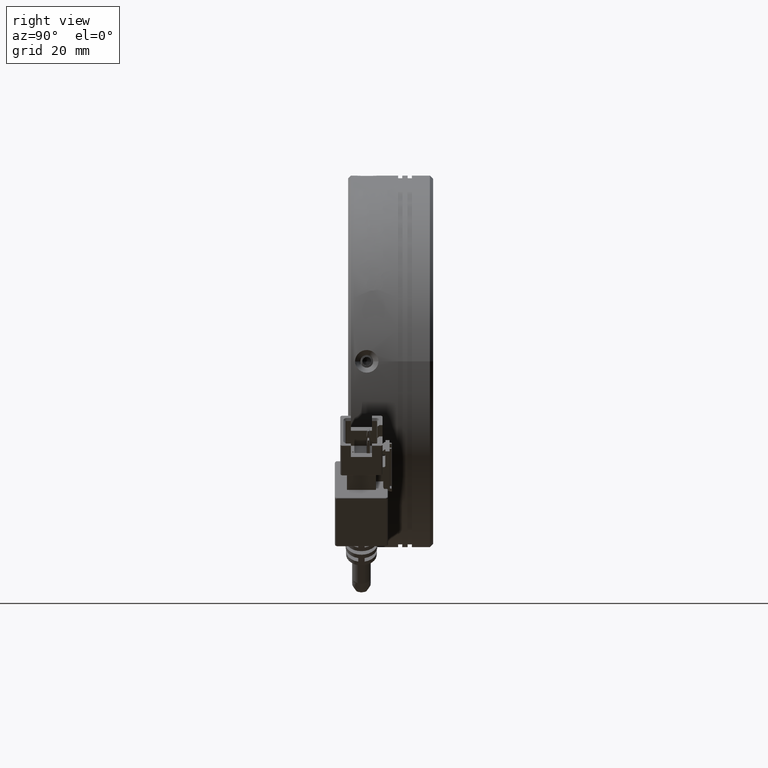
[diagram: clean part render]
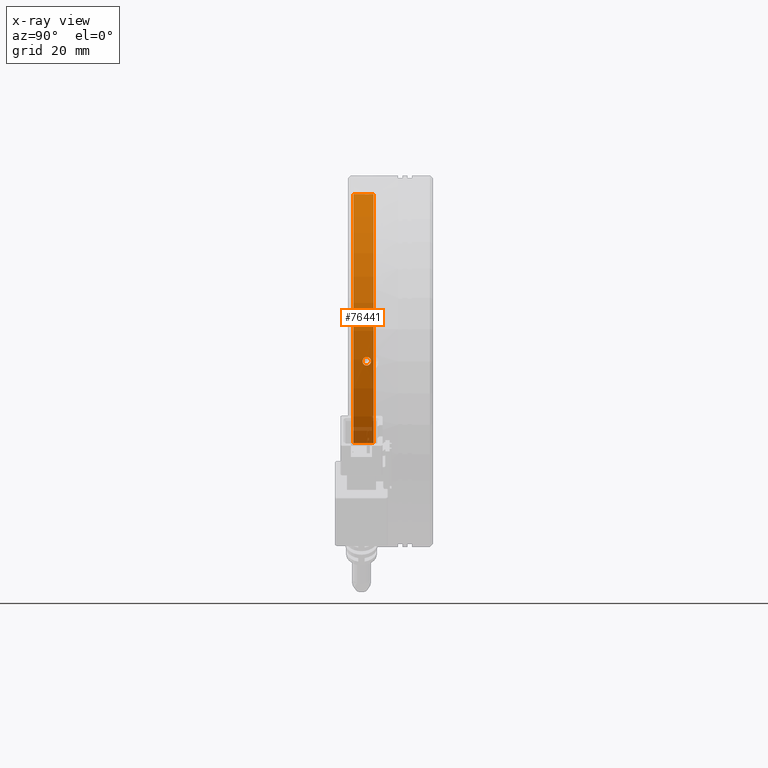
[diagram: x-ray — body ghosted, one internal face saturated and labeled with its STEP entity id]
A machine part, right view, then the same camera in x-ray: the body is ghosted and one INTERNAL B-rep face — a face not visible from any outside direction — is saturated and labeled: STEP entity #76441.
In plain terms, the highlighted cylindrical surface (partial cylindrical patch) has radius 31.5 mm, axis along (-0, 1, -0).
Its self-contained STEP definition (entity closure, byte-faithful):
#379 = DIRECTION ( 'NONE',  ( -0.0000000000000000000, 1.000000000000000000, -0.0000000000000000000 ) ) ;
#1270 = CARTESIAN_POINT ( 'NONE',  ( 6.576318509684369900, -1.559201610334653500, 0.2086567342839958900 ) ) ;
#1356 = EDGE_CURVE ( 'NONE', #81592, #63294, #57889, .T. ) ;
#1485 = DIRECTION ( 'NONE',  ( -0.0000000000000000000, 1.000000000000000000, -0.0000000000000000000 ) ) ;
#1811 = CARTESIAN_POINT ( 'NONE',  ( 6.569106293692797700, -1.196697827452518200, 0.7147047708759698400 ) ) ;
#2309 = FACE_OUTER_BOUND ( 'NONE', #46551, .T. ) ;
#3444 = CARTESIAN_POINT ( 'NONE',  ( -24.52015168709426300, -0.08082387977149985100, 31.49757100603587600 ) ) ;
#3976 = CARTESIAN_POINT ( 'NONE',  ( 6.570455600355737500, -0.2879142114617965800, 0.6394735314231169100 ) ) ;
#4494 = AXIS2_PLACEMENT_3D ( 'NONE', #39621, #379, #46195 ) ;
#5438 = CARTESIAN_POINT ( 'NONE',  ( -24.12313932795385100, -0.8854620899752421200, 31.48983963122075400 ) ) ;
#5700 = CARTESIAN_POINT ( 'NONE',  ( -24.50472580705504900, -1.492876563965897400, 31.49756634394919900 ) ) ;
#7840 = VECTOR ( 'NONE', #16482, 1000.000000000000000 ) ;
#9553 = VERTEX_POINT ( 'NONE', #71879 ) ;
#10048 = CARTESIAN_POINT ( 'NONE',  ( -24.21007687827044200, -0.3614006040602970000, 31.49227410722713200 ) ) ;
#10562 = CARTESIAN_POINT ( 'NONE',  ( 6.576857074747874100, 0.02004423794483546300, 0.2092206139004913800 ) ) ;
#11016 = DIRECTION ( 'NONE',  ( -0.0000000000000000000, 1.000000000000000000, -0.0000000000000000000 ) ) ;
#11118 = CIRCLE ( 'NONE', #4494, 31.50000000000000700 ) ;
#11756 = CARTESIAN_POINT ( 'NONE',  ( -24.92313932795383400, -1.579814118401982000, 31.50000000000000700 ) ) ;
#12289 = CARTESIAN_POINT ( 'NONE',  ( -24.92313932795383400, -1.579814118401982000, 31.50000000000000700 ) ) ;
#16107 = CARTESIAN_POINT ( 'NONE',  ( 6.566700303266906700, -0.7798141184019932200, 0.7999999999998783600 ) ) ;
#16482 = DIRECTION ( 'NONE',  ( -0.0000000000000000000, 1.000000000000000000, -0.0000000000000000000 ) ) ;
#16610 = CARTESIAN_POINT ( 'NONE',  ( -24.12313932795384700, -0.7798141184019933300, 31.48983963122074000 ) ) ;
#17144 = CARTESIAN_POINT ( 'NONE',  ( 6.576318509684369000, -0.0004266264693919979700, -0.2086567342844486700 ) ) ;
#17506 = LINE ( 'NONE', #83268, #52348 ) ;
#19762 = FACE_BOUND ( 'NONE', #71591, .T. ) ;
#20275 = ORIENTED_EDGE ( 'NONE', *, *, #1356, .T. ) ;
#20282 = VERTEX_POINT ( 'NONE', #56492 ) ;
#20792 = CARTESIAN_POINT ( 'NONE',  ( 6.566700303266907600, -0.8855125998908002200, -0.8000000000000985200 ) ) ;
#23749 = CARTESIAN_POINT ( 'NONE',  ( 6.573129320693235300, -0.1391088656252507700, -0.4905563302624682500 ) ) ;
#28595 = ORIENTED_EDGE ( 'NONE', *, *, #51360, .T. ) ;
#28648 = VERTEX_POINT ( 'NONE', #84068 ) ;
#28783 = CARTESIAN_POINT ( 'NONE',  ( 6.567247637299566100, -0.9892296674340348400, -0.7791928881924080600 ) ) ;
#29000 = CYLINDRICAL_SURFACE ( 'NONE', #39202, 31.50000000000000700 ) ;
#29516 = CARTESIAN_POINT ( 'NONE',  ( -24.81749135659914500, 0.02018588159799539900, 31.50000000000000700 ) ) ;
#30190 = CARTESIAN_POINT ( 'NONE',  ( 6.566700303266915600, -0.9912111206865977800, 0.7999999999997646800 ) ) ;
#30193 = VERTEX_POINT ( 'NONE', #39564 ) ;
#30311 = CARTESIAN_POINT ( 'NONE',  ( 6.566700303266907600, -0.5684171947308961400, -0.8000000000000983000 ) ) ;
#30479 = EDGE_CURVE ( 'NONE', #36822, #50814, #74705, .T. ) ;
#30494 = ORIENTED_EDGE ( 'NONE', *, *, #37000, .T. ) ;
#32550 = LINE ( 'NONE', #41648, #65446 ) ;
#33661 = CARTESIAN_POINT ( 'NONE',  ( -24.92313932795383400, 0.5201858815979815100, 0.0000000000000000000 ) ) ;
#34000 = B_SPLINE_CURVE_WITH_KNOTS ( 'NONE', 3,
 ( #69342, #56140, #82534, #43208, #3976, #49808, #10562, #56446, #17144, #63037, #23749, #69605, #30311, #76196 ),
 .UNSPECIFIED., .F., .F.,
 ( 4, 2, 2, 2, 2, 2, 4 ),
 ( 4.242037676328177800E-016, 0.0003125937620726215400, 0.0006251875241448189400, 0.001250375048289213500, 0.001562968810361410900, 0.001875562572433608200, 0.002500750096578002900 ),
 .UNSPECIFIED. ) ;
#36468 = CARTESIAN_POINT ( 'NONE',  ( 6.566700303266906700, -0.7798141184019933300, -0.8000000000000983000 ) ) ;
#36822 = VERTEX_POINT ( 'NONE', #66508 ) ;
#37000 = EDGE_CURVE ( 'NONE', #63294, #81592, #34000, .T. ) ;
#37303 = CARTESIAN_POINT ( 'NONE',  ( 6.569132055974179700, -1.182977323253560100, -0.6988961721456302700 ) ) ;
#37551 = ORIENTED_EDGE ( 'NONE', *, *, #55151, .T. ) ;
#38330 = CARTESIAN_POINT ( 'NONE',  ( -24.14392541945789700, -0.9891274642955584200, 31.49038639855517700 ) ) ;
#39127 = ORIENTED_EDGE ( 'NONE', *, *, #79497, .T. ) ;
#39202 = AXIS2_PLACEMENT_3D ( 'NONE', #78576, #1485, #73751 ) ;
#39464 = B_SPLINE_CURVE_WITH_KNOTS ( 'NONE', 3,
 ( #64488, #5438, #38330, #84247, #44926, #5700, #51557, #12289 ),
 .UNSPECIFIED., .F., .F.,
 ( 4, 2, 2, 4 ),
 ( 0.002499555707214736100, 0.002812000410402850000, 0.003124445113590964300, 0.003749334519967191700 ),
 .UNSPECIFIED. ) ;
#39564 = CARTESIAN_POINT ( 'NONE',  ( 2.567196212674958100, -3.279814118402002400, -15.37957905352554800 ) ) ;
#39621 = CARTESIAN_POINT ( 'NONE',  ( -24.92313932795383400, -3.279814118402002400, 0.0000000000000000000 ) ) ;
#40253 = DIRECTION ( 'NONE',  ( 0.0000000000000000000, 0.0000000000000000000, 1.000000000000000000 ) ) ;
#40524 = CARTESIAN_POINT ( 'NONE',  ( 6.570455600355741100, -1.271714025342118400, -0.6394735314233894700 ) ) ;
#40817 = CARTESIAN_POINT ( 'NONE',  ( 6.576862463693002400, -1.579884664512040300, 0.1037968454329345800 ) ) ;
#41410 = CARTESIAN_POINT ( 'NONE',  ( 6.574432026029295900, -1.493100343745424200, -0.4180794471032067100 ) ) ;
#41648 = CARTESIAN_POINT ( 'NONE',  ( -24.92313932795383400, 45.88112954314367200, 31.50000000000000700 ) ) ;
#41957 = CARTESIAN_POINT ( 'NONE',  ( 6.576857074747869600, -1.579672474748767600, -0.2092206139008755700 ) ) ;
#42262 = CARTESIAN_POINT ( 'NONE',  ( 2.567196212674958100, 45.88112954314367200, -15.37957905352555300 ) ) ;
#42686 = CARTESIAN_POINT ( 'NONE',  ( -24.71382598151274500, -0.0006002097813167900100, 31.49945342767014700 ) ) ;
#43208 = CARTESIAN_POINT ( 'NONE',  ( 6.569132055974182400, -0.3766509135503731700, 0.6988961721453809100 ) ) ;
#43350 = CARTESIAN_POINT ( 'NONE',  ( 6.573129320693244200, -1.420519371178910600, 0.4905563302620127900 ) ) ;
#44926 = CARTESIAN_POINT ( 'NONE',  ( -24.28351549794466600, -1.271508472163057200, 31.49359173264575800 ) ) ;
#45642 = EDGE_CURVE ( 'NONE', #9553, #49682, #32550, .T. ) ;
#45689 = AXIS2_PLACEMENT_3D ( 'NONE', #33661, #79554, #40253 ) ;
#46195 = DIRECTION ( 'NONE',  ( 0.0000000000000000000, 0.0000000000000000000, 1.000000000000000000 ) ) ;
#46551 = EDGE_LOOP ( 'NONE', ( #56982, #39127, #37551, #83223, #66526, #55404, #28595 ) ) ;
#49285 = CARTESIAN_POINT ( 'NONE',  ( -24.43144496922888500, -0.1401902921329064900, 31.49624871763409600 ) ) ;
#49682 = VERTEX_POINT ( 'NONE', #11756 ) ;
#49808 = CARTESIAN_POINT ( 'NONE',  ( 6.574432026029294100, -0.06652789305848964800, 0.4180794471028770300 ) ) ;
#50814 = VERTEX_POINT ( 'NONE', #71975 ) ;
#51360 = EDGE_CURVE ( 'NONE', #50814, #49682, #39464, .T. ) ;
#51557 = CARTESIAN_POINT ( 'NONE',  ( -24.71184306092554900, -1.579814118402091100, 31.50000000000000700 ) ) ;
#52348 = VECTOR ( 'NONE', #11016, 1000.000000000000000 ) ;
#52364 = EDGE_CURVE ( 'NONE', #36822, #28648, #17506, .T. ) ;
#55151 = EDGE_CURVE ( 'NONE', #30193, #20282, #75528, .T. ) ;
#55404 = ORIENTED_EDGE ( 'NONE', *, *, #30479, .T. ) ;
#55903 = CARTESIAN_POINT ( 'NONE',  ( -24.12313932795384400, -0.5685182834037889600, 31.48983963122075400 ) ) ;
#56140 = CARTESIAN_POINT ( 'NONE',  ( 6.566700303266912000, -0.6741156369135986600, 0.7999999999999353200 ) ) ;
#56446 = CARTESIAN_POINT ( 'NONE',  ( 6.576862463693000600, 0.02025642770802669700, -0.1037968454333851000 ) ) ;
#56492 = CARTESIAN_POINT ( 'NONE',  ( 2.567196212674958100, 0.5201858815979745200, -15.37957905352555200 ) ) ;
#56982 = ORIENTED_EDGE ( 'NONE', *, *, #45642, .F. ) ;
#57889 = B_SPLINE_CURVE_WITH_KNOTS ( 'NONE', 3,
 ( #36468, #20792, #28783, #37303, #40524, #41410, #41957, #40817, #1270, #74655, #43350, #1811, #30190, #63456 ),
 .UNSPECIFIED., .F., .F.,
 ( 4, 2, 2, 2, 2, 2, 4 ),
 ( 0.002500750096578002900, 0.002813343916772957300, 0.003125937736967912100, 0.003751125377357820500, 0.004063719197552774800, 0.004376313017747729200, 0.005001500658137638000 ),
 .UNSPECIFIED. ) ;
#63037 = CARTESIAN_POINT ( 'NONE',  ( 6.574439679603653300, -0.08046861383332551400, -0.4023659535582995700 ) ) ;
#63294 = VERTEX_POINT ( 'NONE', #16107 ) ;
#63456 = CARTESIAN_POINT ( 'NONE',  ( 6.566700303266906700, -0.7798141184019932200, 0.7999999999998783600 ) ) ;
#64488 = CARTESIAN_POINT ( 'NONE',  ( -24.12313932795384700, -0.7798141184019933300, 31.48983963122074000 ) ) ;
#65446 = VECTOR ( 'NONE', #80921, 1000.000000000000000 ) ;
#66508 = CARTESIAN_POINT ( 'NONE',  ( -24.92313932795383400, 0.02018588159799560000, 31.50000000000000700 ) ) ;
#66526 = ORIENTED_EDGE ( 'NONE', *, *, #52364, .F. ) ;
#69342 = CARTESIAN_POINT ( 'NONE',  ( 6.566700303266906700, -0.7798141184019932200, 0.7999999999998783600 ) ) ;
#69605 = CARTESIAN_POINT ( 'NONE',  ( 6.569106293692788000, -0.3629304093518074800, -0.7147047708764078200 ) ) ;
#71591 = EDGE_LOOP ( 'NONE', ( #20275, #30494 ) ) ;
#71879 = CARTESIAN_POINT ( 'NONE',  ( -24.92313932795383400, -3.279814118402002400, 31.50000000000000700 ) ) ;
#71975 = CARTESIAN_POINT ( 'NONE',  ( -24.12313932795384700, -0.7798141184019933300, 31.48983963122074000 ) ) ;
#73751 = DIRECTION ( 'NONE',  ( 0.0000000000000000000, 0.0000000000000000000, 1.000000000000000000 ) ) ;
#74655 = CARTESIAN_POINT ( 'NONE',  ( 6.574439679603659500, -1.479159622970805300, 0.4023659535578212900 ) ) ;
#74705 = B_SPLINE_CURVE_WITH_KNOTS ( 'NONE', 3,
 ( #75376, #29516, #42686, #3444, #49285, #10048, #55903, #16610 ),
 .UNSPECIFIED., .F., .F.,
 ( 4, 2, 2, 4 ),
 ( 0.001249777534140651100, 0.001562222077409172200, 0.001874666620677693600, 0.002499555707214736100 ),
 .UNSPECIFIED. ) ;
#75206 = CARTESIAN_POINT ( 'NONE',  ( 6.566700303266906700, -0.7798141184019933300, -0.8000000000000983000 ) ) ;
#75376 = CARTESIAN_POINT ( 'NONE',  ( -24.92313932795383400, 0.02018588159799560000, 31.50000000000000700 ) ) ;
#75379 = CIRCLE ( 'NONE', #45689, 31.50000000000000700 ) ;
#75528 = LINE ( 'NONE', #42262, #7840 ) ;
#75821 = EDGE_CURVE ( 'NONE', #20282, #28648, #75379, .T. ) ;
#76196 = CARTESIAN_POINT ( 'NONE',  ( 6.566700303266906700, -0.7798141184019933300, -0.8000000000000983000 ) ) ;
#76441 = ADVANCED_FACE ( 'NONE', ( #2309, #19762 ), #29000, .T. ) ;
#78576 = CARTESIAN_POINT ( 'NONE',  ( -24.92313932795383400, 45.88112954314367200, 0.0000000000000000000 ) ) ;
#79497 = EDGE_CURVE ( 'NONE', #9553, #30193, #11118, .T. ) ;
#79554 = DIRECTION ( 'NONE',  ( 0.0000000000000000000, -1.000000000000000000, 0.0000000000000000000 ) ) ;
#80921 = DIRECTION ( 'NONE',  ( -0.0000000000000000000, 1.000000000000000000, -0.0000000000000000000 ) ) ;
#81592 = VERTEX_POINT ( 'NONE', #75206 ) ;
#82534 = CARTESIAN_POINT ( 'NONE',  ( 6.567247637299572300, -0.5703985693699121800, 0.7791928881921792400 ) ) ;
#83223 = ORIENTED_EDGE ( 'NONE', *, *, #75821, .T. ) ;
#83268 = CARTESIAN_POINT ( 'NONE',  ( -24.92313932795383400, 45.88112954314367200, 31.50000000000000700 ) ) ;
#84068 = CARTESIAN_POINT ( 'NONE',  ( -24.92313932795383400, 0.5201858815979815100, 31.50000000000000700 ) ) ;
#84247 = CARTESIAN_POINT ( 'NONE',  ( -24.22414908730136000, -1.182801755228799900, 31.49226924959482700 ) ) ;